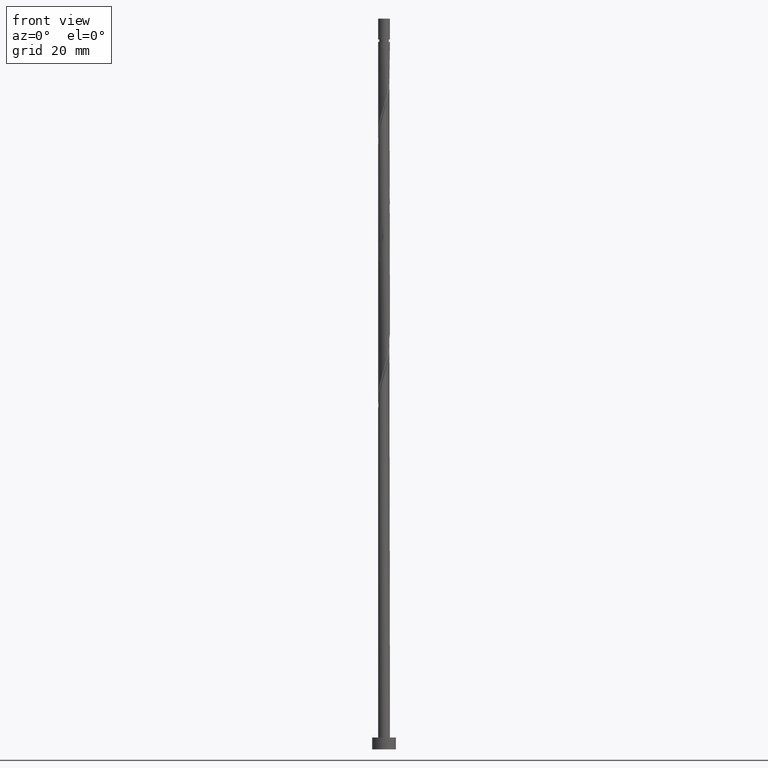
[diagram: clean part render]
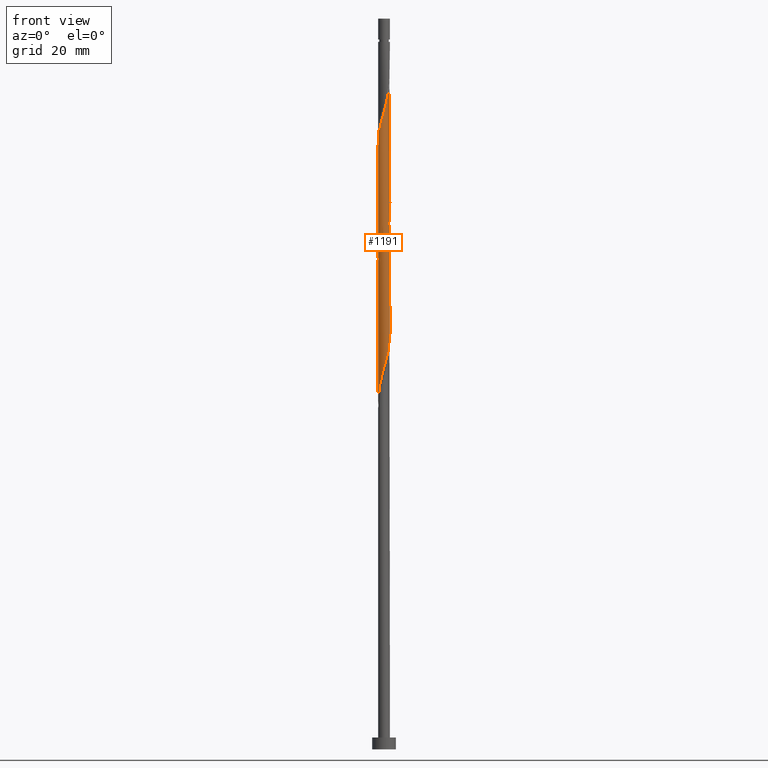
[diagram: same view with one face highlighted and labeled with its STEP entity id]
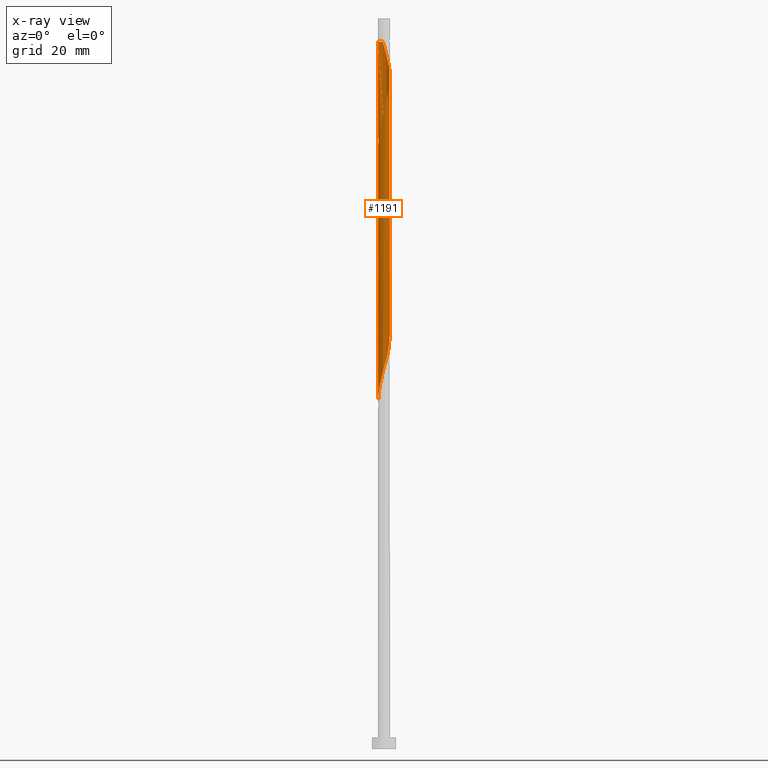
[diagram: x-ray of the same camera — body ghosted, the highlighted face saturated]
A machine part, front view. The second image highlights one B-rep face of the part: STEP entity #1191.
The next image is the same camera in x-ray: the body ghosted, the highlighted face saturated — about 0% of this face is hidden behind the body in this view.
In plain terms, the highlighted cylindrical surface (bore or boss wall) has radius 1.5 mm, axis along (-0, -0, -1).
Its self-contained STEP definition (entity closure, byte-faithful):
#8 = CARTESIAN_POINT ( 'NONE',  ( -1.500000000000000666, -2.033714684332305775E-15, 88.19879343098972413 ) ) ;
#18 = CARTESIAN_POINT ( 'NONE',  ( 0.6687892150010429360, -1.342654455136651048, 163.5241156646684999 ) ) ;
#21 = ORIENTED_EDGE ( 'NONE', *, *, #199, .F. ) ;
#30 = CARTESIAN_POINT ( 'NONE',  ( 1.250515677536281123, -0.8283782591521721139, 166.3018934424463282 ) ) ;
#33 = CARTESIAN_POINT ( 'NONE',  ( -0.09213877760036841280, 1.497167474153212829, 113.5241156646685567 ) ) ;
#37 = CARTESIAN_POINT ( 'NONE',  ( 1.500000000000000222, 1.836970198721030181E-16, 184.6699999999999875 ) ) ;
#50 = CARTESIAN_POINT ( 'NONE',  ( 0.8283782591521695604, -1.250515677536280235, 99.63522677577967102 ) ) ;
#57 = CARTESIAN_POINT ( 'NONE',  ( 1.422305459129118876, 0.4764946809057870603, 106.5796712202240712 ) ) ;
#63 = CARTESIAN_POINT ( 'NONE',  ( 1.141457610771798192, 0.9930117713720155725, 108.6630045535574283 ) ) ;
#82 = EDGE_CURVE ( 'NONE', #1488, #261, #1179, .T. ) ;
#85 = CARTESIAN_POINT ( 'NONE',  ( 1.470000000000000195, -0.2984962311319871442, 137.1352267757797563 ) ) ;
#89 = CARTESIAN_POINT ( 'NONE',  ( -1.500000000000002220, -9.645190966134766424E-16, 152.7383267872363035 ) ) ;
#92 = CARTESIAN_POINT ( 'NONE',  ( -1.470000000000000195, 0.2984962311319869777, 120.4685601091129854 ) ) ;
#98 = CARTESIAN_POINT ( 'NONE',  ( -1.500000000000000444, -4.261828566431670262E-16, 154.8654600976564097 ) ) ;
#112 = CARTESIAN_POINT ( 'NONE',  ( 1.123809227997131233, -0.9935053190942128021, 134.3574489980019280 ) ) ;
#117 = VECTOR ( 'NONE', #1595, 1000.000000000000000 ) ;
#120 = ORIENTED_EDGE ( 'NONE', *, *, #986, .F. ) ;
#126 = CARTESIAN_POINT ( 'NONE',  ( 1.359573744300764053, -0.6637447469323257687, 166.9963378868907853 ) ) ;
#133 = CARTESIAN_POINT ( 'NONE',  ( -1.499999999999990452, 0.000000000000000000, 178.8018934424463282 ) ) ;
#161 = ORIENTED_EDGE ( 'NONE', *, *, #918, .T. ) ;
#163 = CARTESIAN_POINT ( 'NONE',  ( 0.2984962311319872552, 1.470000000000000195, 112.1352267757796426 ) ) ;
#173 = CARTESIAN_POINT ( 'NONE',  ( 1.250515677536280013, 0.8283782591521698935, 107.9685601091129712 ) ) ;
#179 = EDGE_CURVE ( 'NONE', #666, #1297, #1115, .T. ) ;
#188 = CARTESIAN_POINT ( 'NONE',  ( -0.8455530274166267457, -1.254606684622247226, 93.38522677577965680 ) ) ;
#199 = EDGE_CURVE ( 'NONE', #1488, #666, #1103, .T. ) ;
#202 = DIRECTION ( 'NONE',  ( -1.000000000000000000, 0.000000000000000000, 0.000000000000000000 ) ) ;
#210 =( BOUNDED_CURVE ( )  B_SPLINE_CURVE ( 2, ( #1617, #866, #85, #999, #602, #238, #112, #465, #748, #968, #1122, #1466, #367, #338, #1343, #857, #1131, #1623, #641, #878, #216, #1367, #730, #757, #1253, #1226, #92, #960, #1456, #612, #1601, #480, #979, #1477, #1382, #1396, #33, #1411, #163, #762, #1009, #647, #516, #63, #173, #439, #57, #950, #1327, #683, #690, #571, #448, #1445, #578, #1186, #50, #1064, #1562, #434, #935, #1430, #314, #819, #1320, #188, #718, #599, #1597, #1095, #476, #976, #1454, #835, #1473 ),
 .UNSPECIFIED., .F., .T. ) 
 B_SPLINE_CURVE_WITH_KNOTS ( ( 3, 2, 2, 2, 2, 2, 2, 2, 2, 2, 2, 2, 2, 2, 2, 2, 2, 2, 2, 2, 2, 2, 2, 2, 2, 2, 2, 2, 2, 2, 2, 2, 2, 2, 2, 2, 2, 3 ),
 ( 0.5545317669814462391, 0.5625000000000000000, 0.5729166666666666297, 0.5833333333333333703, 0.5937500000000000000, 0.6041666666666666297, 0.6145833333333333703, 0.6250000000000000000, 0.6354166666666666297, 0.6458333333333333703, 0.6562500000000000000, 0.6666666666666666297, 0.6770833333333333703, 0.6875000000000000000, 0.6979166666666666297, 0.7083333333333333703, 0.7187500000000000000, 0.7291666666666666297, 0.7395833333333333703, 0.7500000000000000000, 0.7604166666666666297, 0.7708333333333333703, 0.7812500000000000000, 0.7916666666666666297, 0.8020833333333333703, 0.8125000000000000000, 0.8229166666666666297, 0.8333333333333333703, 0.8437500000000000000, 0.8541666666666666297, 0.8645833333333333703, 0.8750000000000000000, 0.8854166666666666297, 0.8958333333333332593, 0.9062500000000000000, 0.9166666666666667407, 0.9270833333333332593, 0.9295317669814462391 ),
 .UNSPECIFIED. ) 
 CURVE ( )  GEOMETRIC_REPRESENTATION_ITEM ( )  RATIONAL_B_SPLINE_CURVE ( ( 0.9062941362546560464, 0.9031415850403601286, 0.9090909090909357060, 0.9013135103398539627, 0.9090909090909357060, 0.9013135103398539627, 0.9090909090909357060, 0.9013135103398539627, 0.9090909090909357060, 0.9013135103398539627, 0.9090909090909357060, 0.9013135103398539627, 0.9090909090909357060, 0.9013135103398539627, 0.9090909090909357060, 0.9013135103398539627, 0.9090909090909357060, 0.9013135103398539627, 0.9090909090909357060, 0.9013135103398539627, 0.9090909090909357060, 0.9013135103398539627, 0.9090909090909357060, 0.9013135103398539627, 0.9090909090909357060, 0.9013135103398539627, 0.9090909090909357060, 0.9013135103398539627, 0.9090909090909357060, 0.9013135103398539627, 0.9090909090909357060, 0.9013135103398539627, 0.9090909090909357060, 0.9013135103398539627, 0.9090909090909357060, 0.9013135103398539627, 0.9090909090909357060, 0.9013135103398539627, 0.9090909090909357060, 0.9013135103398539627, 0.9090909090909357060, 0.9013135103398539627, 0.9090909090909357060, 0.9013135103398539627, 0.9090909090909357060, 0.9013135103398539627, 0.9090909090909357060, 0.9013135103398539627, 0.9090909090909357060, 0.9013135103398539627, 0.9090909090909357060, 0.9013135103398539627, 0.9090909090909357060, 0.9013135103398539627, 0.9090909090909357060, 0.9013135103398539627, 0.9090909090909357060, 0.9013135103398539627, 0.9090909090909357060, 0.9013135103398539627, 0.9090909090909357060, 0.9013135103398539627, 0.9090909090909357060, 0.9013135103398539627, 0.9090909090909357060, 0.9013135103398539627, 0.9090909090909357060, 0.9013135103398539627, 0.9090909090909357060, 0.9013135103398539627, 0.9090909090909357060, 0.9013135103398539627, 0.9090909090909357060, 0.9072628343904295400, 0.9062941362546560464 ) ) 
 REPRESENTATION_ITEM ( '' )  );
#211 = CARTESIAN_POINT ( 'NONE',  ( -1.430702225651049320, 0.4920254025854589042, 153.1074489980018711 ) ) ;
#216 = CARTESIAN_POINT ( 'NONE',  ( -1.250515677536280013, -0.8283782591521701155, 124.6352267757796568 ) ) ;
#226 = VERTEX_POINT ( 'NONE', #1481 ) ;
#232 = CARTESIAN_POINT ( 'NONE',  ( -1.500000000000000888, 0.1507556722888802048, 154.3320337284671950 ) ) ;
#238 = CARTESIAN_POINT ( 'NONE',  ( 1.254606684622246782, -0.8455530274166275229, 135.0518934424462998 ) ) ;
#244 = CARTESIAN_POINT ( 'NONE',  ( 1.359573744300762277, 0.6637447469323227711, 140.6074489980018427 ) ) ;
#261 = VERTEX_POINT ( 'NONE', #1372 ) ;
#265 = LINE ( 'NONE', #37, #1361 ) ;
#268 = CARTESIAN_POINT ( 'NONE',  ( 1.141457610771798858, -0.9930117713720179040, 165.6074489980018711 ) ) ;
#270 = EDGE_LOOP ( 'NONE', ( #21, #915, #1418, #161, #388, #120, #1296, #729 ) ) ;
#273 = CARTESIAN_POINT ( 'NONE',  ( 0.000000000000000000, 0.000000000000000000, 184.6699999999999875 ) ) ;
#286 = CARTESIAN_POINT ( 'NONE',  ( 1.430702225651052428, 0.4920254025854587931, 171.1630045535574141 ) ) ;
#314 = CARTESIAN_POINT ( 'NONE',  ( -0.2984962311319870887, -1.470000000000000195, 95.46856010911298540 ) ) ;
#331 = CARTESIAN_POINT ( 'NONE',  ( 0.6687892150010440462, 1.342654455136647940, 144.0796712202240997 ) ) ;
#338 = CARTESIAN_POINT ( 'NONE',  ( -0.1049670596785154120, -1.509297774348951293, 129.4963378868907569 ) ) ;
#340 = CARTESIAN_POINT ( 'NONE',  ( 1.500000000000000222, 1.836970198721030181E-16, 178.8018934424463282 ) ) ;
#352 = CARTESIAN_POINT ( 'NONE',  ( -0.9930117713720179040, -1.141457610771798858, 157.2741156646684999 ) ) ;
#354 = CARTESIAN_POINT ( 'NONE',  ( 0.4920254025854601254, 1.430702225651048876, 144.7741156646684999 ) ) ;
#360 = CARTESIAN_POINT ( 'NONE',  ( -0.6637447469323257687, -1.359573744300764275, 158.6630045535574425 ) ) ;
#363 = CARTESIAN_POINT ( 'NONE',  ( 0.2984962311319872552, 1.470000000000000195, 145.4685601091130138 ) ) ;
#367 = CARTESIAN_POINT ( 'NONE',  ( 0.09213877760036778830, -1.497167474153212829, 130.1907823313352424 ) ) ;
#388 = ORIENTED_EDGE ( 'NONE', *, *, #876, .F. ) ;
#404 = CARTESIAN_POINT ( 'NONE',  ( 1.470000000000002416, 0.2984962311319868111, 170.4685601091129854 ) ) ;
#434 = CARTESIAN_POINT ( 'NONE',  ( 0.2892446148792508498, -1.485037173957475032, 97.55189344244634242 ) ) ;
#439 = CARTESIAN_POINT ( 'NONE',  ( 1.359573744300762277, 0.6637447469323227711, 107.2741156646685567 ) ) ;
#448 = CARTESIAN_POINT ( 'NONE',  ( 1.342654455136647940, -0.6687892150010439352, 102.4130045535574283 ) ) ;
#465 = CARTESIAN_POINT ( 'NONE',  ( 0.9930117713720155725, -1.141457610771798192, 133.6630045535574141 ) ) ;
#471 = CARTESIAN_POINT ( 'NONE',  ( -1.430702225651052428, -0.4920254025854589042, 154.4963378868907569 ) ) ;
#476 = CARTESIAN_POINT ( 'NONE',  ( -1.422305459129118654, -0.4764946809057876154, 89.91300455355742827 ) ) ;
#480 = CARTESIAN_POINT ( 'NONE',  ( -0.9930117713720162387, 1.141457610771797970, 116.9963378868907569 ) ) ;
#483 = CARTESIAN_POINT ( 'NONE',  ( -1.342654455136650826, -0.6687892150010431580, 155.1907823313351855 ) ) ;
#487 = CARTESIAN_POINT ( 'NONE',  ( 1.141457610771798192, 0.9930117713720155725, 141.9963378868908137 ) ) ;
#488 = CARTESIAN_POINT ( 'NONE',  ( -0.09213877760036917608, -1.497167474153214384, 160.7463378868908137 ) ) ;
#504 = CARTESIAN_POINT ( 'NONE',  ( -0.2892446148792517935, 1.485037173957475032, 147.5518934424463566 ) ) ;
#512 = CARTESIAN_POINT ( 'NONE',  ( 1.342654455136651048, 0.6687892150010429360, 171.8574489980018427 ) ) ;
#516 = CARTESIAN_POINT ( 'NONE',  ( 0.9935053190942128021, 1.123809227997131233, 109.3574489980018996 ) ) ;
#532 = CARTESIAN_POINT ( 'NONE',  ( 0.6637447469323259908, 1.359573744300764053, 175.3296712202240997 ) ) ;
#542 = CARTESIAN_POINT ( 'NONE',  ( 1.497167474153214384, -0.09213877760036998099, 169.0796712202240997 ) ) ;
#550 = LINE ( 'NONE', #1046, #1004 ) ;
#571 = CARTESIAN_POINT ( 'NONE',  ( 1.430702225651048876, -0.4920254025854600699, 103.1074489980018996 ) ) ;
#578 = CARTESIAN_POINT ( 'NONE',  ( 1.123809227997131233, -0.9935053190942128021, 101.0241156646685425 ) ) ;
#599 = CARTESIAN_POINT ( 'NONE',  ( -1.141457610771798192, -0.9930117713720160166, 91.99633788689077107 ) ) ;
#602 = CARTESIAN_POINT ( 'NONE',  ( 1.342654455136647940, -0.6687892150010439352, 135.7463378868908137 ) ) ;
#604 = CARTESIAN_POINT ( 'NONE',  ( -1.500000000000000444, -4.261828566431670262E-16, 154.8654600976564097 ) ) ;
#608 = CARTESIAN_POINT ( 'NONE',  ( 1.500000000000000444, 1.652393181019998565E-15, 138.1987934309897526 ) ) ;
#612 = CARTESIAN_POINT ( 'NONE',  ( -1.254606684622247226, 0.8455530274166267457, 118.3852267757796426 ) ) ;
#617 = CARTESIAN_POINT ( 'NONE',  ( -0.09213877760036841280, 1.497167474153212829, 146.8574489980018996 ) ) ;
#624 = CARTESIAN_POINT ( 'NONE',  ( 0.2984962311319869221, -1.470000000000002416, 162.1352267757796426 ) ) ;
#633 = VERTEX_POINT ( 'NONE', #340 ) ;
#641 = CARTESIAN_POINT ( 'NONE',  ( -0.9935053190942128021, -1.123809227997131455, 126.0241156646685567 ) ) ;
#645 = CARTESIAN_POINT ( 'NONE',  ( 1.254606684622249890, 0.8455530274166268567, 172.5518934424462998 ) ) ;
#647 = CARTESIAN_POINT ( 'NONE',  ( 0.8455530274166275229, 1.254606684622246560, 110.0518934424463140 ) ) ;
#656 = CARTESIAN_POINT ( 'NONE',  ( 0.8455530274166268567, -1.254606684622249890, 164.2185601091129570 ) ) ;
#666 = VERTEX_POINT ( 'NONE', #604 ) ;
#683 = CARTESIAN_POINT ( 'NONE',  ( 1.509297774348951293, -0.1049670596785154952, 104.4963378868907711 ) ) ;
#690 = CARTESIAN_POINT ( 'NONE',  ( 1.470000000000000195, -0.2984962311319871442, 103.8018934424463282 ) ) ;
#713 = CARTESIAN_POINT ( 'NONE',  ( -0.2892446148792525706, -1.485037173957477030, 160.0518934424463282 ) ) ;
#718 = CARTESIAN_POINT ( 'NONE',  ( -0.9935053190942128021, -1.123809227997131455, 92.69078233133521394 ) ) ;
#725 = CARTESIAN_POINT ( 'NONE',  ( -0.6637447469323241034, 1.359573744300762055, 148.9407823313352708 ) ) ;
#729 = ORIENTED_EDGE ( 'NONE', *, *, #179, .F. ) ;
#730 = CARTESIAN_POINT ( 'NONE',  ( -1.422305459129118654, -0.4764946809057876154, 123.2463378868907853 ) ) ;
#735 = CARTESIAN_POINT ( 'NONE',  ( 0.1049670596785142740, -1.509297774348953070, 161.4407823313351855 ) ) ;
#743 = CARTESIAN_POINT ( 'NONE',  ( -1.123809227997131455, 0.9935053190942124690, 151.0241156646685852 ) ) ;
#748 = CARTESIAN_POINT ( 'NONE',  ( 0.8283782591521695604, -1.250515677536280235, 132.9685601091130138 ) ) ;
#753 = CARTESIAN_POINT ( 'NONE',  ( 0.1049670596785149818, 1.509297774348950627, 146.1630045535574425 ) ) ;
#757 = CARTESIAN_POINT ( 'NONE',  ( -1.485037173957475032, -0.2892446148792514049, 122.5518934424463282 ) ) ;
#759 = CARTESIAN_POINT ( 'NONE',  ( -0.9930117713720162387, 1.141457610771797970, 150.3296712202240997 ) ) ;
#760 = CARTESIAN_POINT ( 'NONE',  ( 0.9930117713720185701, 1.141457610771798192, 173.9407823313351855 ) ) ;
#762 = CARTESIAN_POINT ( 'NONE',  ( 0.4920254025854601254, 1.430702225651048876, 111.4407823313351997 ) ) ;
#781 = DIRECTION ( 'NONE',  ( -0.000000000000000000, -0.000000000000000000, -1.000000000000000000 ) ) ;
#783 = CARTESIAN_POINT ( 'NONE',  ( 1.123809227997134341, 0.9935053190942124690, 173.2463378868906716 ) ) ;
#793 = CARTESIAN_POINT ( 'NONE',  ( -0.1049670596785112348, 1.509297774348953070, 178.1074489980018996 ) ) ;
#808 = CARTESIAN_POINT ( 'NONE',  ( 0.000000000000000000, 0.000000000000000000, 178.8018934424463282 ) ) ;
#819 = CARTESIAN_POINT ( 'NONE',  ( -0.4920254025854592927, -1.430702225651049320, 94.77411566466852832 ) ) ;
#834 =( BOUNDED_CURVE ( )  B_SPLINE_CURVE ( 2, ( #89, #990, #1109, #471, #483, #984, #1479, #352, #1484, #360, #881, #713, #488, #735, #624, #1158, #18, #656, #1041, #268, #30, #126, #1165, #1285, #542, #1535, #404, #286, #512, #645, #783, #760, #1630, #532, #1014, #1030, #1023, #793, #914 ),
 .UNSPECIFIED., .F., .T. ) 
 B_SPLINE_CURVE_WITH_KNOTS ( ( 3, 2, 2, 2, 2, 2, 2, 2, 2, 2, 2, 2, 2, 2, 2, 2, 2, 2, 2, 3 ),
 ( 0.5545317669814464612, 0.5625000000000000000, 0.5729166666666667407, 0.5833333333333332593, 0.5937500000000000000, 0.6041666666666667407, 0.6145833333333332593, 0.6250000000000000000, 0.6354166666666667407, 0.6458333333333332593, 0.6562500000000000000, 0.6666666666666666297, 0.6770833333333331483, 0.6874999999999998890, 0.6979166666666666297, 0.7083333333333331483, 0.7187499999999998890, 0.7291666666666666297, 0.7395833333333331483, 0.7499999999999998890 ),
 .UNSPECIFIED. ) 
 CURVE ( )  GEOMETRIC_REPRESENTATION_ITEM ( )  RATIONAL_B_SPLINE_CURVE ( ( 0.9062941362546617086, 0.9031415850403662349, 0.9090909090909415902, 0.9013135103398597359, 0.9090909090909415902, 0.9013135103398597359, 0.9090909090909415902, 0.9013135103398597359, 0.9090909090909415902, 0.9013135103398597359, 0.9090909090909415902, 0.9013135103398597359, 0.9090909090909415902, 0.9013135103398597359, 0.9090909090909415902, 0.9013135103398597359, 0.9090909090909415902, 0.9013135103398597359, 0.9090909090909415902, 0.9013135103398597359, 0.9090909090909415902, 0.9013135103398597359, 0.9090909090909415902, 0.9013135103398597359, 0.9090909090909415902, 0.9013135103398597359, 0.9090909090909415902, 0.9013135103398597359, 0.9090909090909415902, 0.9013135103398597359, 0.9090909090909415902, 0.9013135103398597359, 0.9090909090909415902, 0.9013135103398597359, 0.9090909090909415902, 0.9013135103398597359, 0.9090909090909415902, 0.9013135103398597359, 0.9090909090909415902 ) ) 
 REPRESENTATION_ITEM ( '' )  );
#835 = CARTESIAN_POINT ( 'NONE',  ( -1.500000000000000444, -0.04611292748651065615, 88.36195711901787320 ) ) ;
#857 = CARTESIAN_POINT ( 'NONE',  ( -0.4920254025854592927, -1.430702225651049320, 128.1074489980018711 ) ) ;
#862 = CARTESIAN_POINT ( 'NONE',  ( -1.254606684622247226, 0.8455530274166267457, 151.7185601091129570 ) ) ;
#866 = CARTESIAN_POINT ( 'NONE',  ( 1.500000000000000888, -0.1507556722888816203, 137.6653670618005094 ) ) ;
#872 = CARTESIAN_POINT ( 'NONE',  ( 1.422305459129118876, 0.4764946809057870603, 139.9130045535574141 ) ) ;
#876 = EDGE_CURVE ( 'NONE', #1297, #1410, #210, .T. ) ;
#878 = CARTESIAN_POINT ( 'NONE',  ( -1.141457610771798192, -0.9930117713720160166, 125.3296712202240997 ) ) ;
#881 = CARTESIAN_POINT ( 'NONE',  ( -0.4764946809057893917, -1.422305459129119987, 159.3574489980018711 ) ) ;
#914 = CARTESIAN_POINT ( 'NONE',  ( -0.2984962311320307204, 1.470000000000440954, 178.8018934424463282 ) ) ;
#915 = ORIENTED_EDGE ( 'NONE', *, *, #82, .T. ) ;
#918 = EDGE_CURVE ( 'NONE', #226, #1410, #550, .T. ) ;
#935 = CARTESIAN_POINT ( 'NONE',  ( 0.09213877760036778830, -1.497167474153212829, 96.85744899800184271 ) ) ;
#950 = CARTESIAN_POINT ( 'NONE',  ( 1.485037173957475032, 0.2892446148792508498, 105.8852267757796284 ) ) ;
#957 = AXIS2_PLACEMENT_3D ( 'NONE', #808, #1575, #202 ) ;
#960 = CARTESIAN_POINT ( 'NONE',  ( -1.430702225651049320, 0.4920254025854589042, 119.7741156646685283 ) ) ;
#968 = CARTESIAN_POINT ( 'NONE',  ( 0.6637447469323237703, -1.359573744300762277, 132.2741156646685567 ) ) ;
#976 = CARTESIAN_POINT ( 'NONE',  ( -1.485037173957475032, -0.2892446148792514049, 89.21856010911299961 ) ) ;
#979 = CARTESIAN_POINT ( 'NONE',  ( -0.8283782591521701155, 1.250515677536280013, 116.3018934424463282 ) ) ;
#984 = CARTESIAN_POINT ( 'NONE',  ( -1.254606684622249890, -0.8455530274166273008, 155.8852267757796142 ) ) ;
#986 = EDGE_CURVE ( 'NONE', #633, #1297, #265, .T. ) ;
#990 = CARTESIAN_POINT ( 'NONE',  ( -1.500000000000001776, -0.1507556722888867273, 153.2717531564255751 ) ) ;
#999 = CARTESIAN_POINT ( 'NONE',  ( 1.430702225651048876, -0.4920254025854600699, 136.4407823313352139 ) ) ;
#1004 = VECTOR ( 'NONE', #1171, 1000.000000000000000 ) ;
#1009 = CARTESIAN_POINT ( 'NONE',  ( 0.6687892150010440462, 1.342654455136647940, 110.7463378868907711 ) ) ;
#1014 = CARTESIAN_POINT ( 'NONE',  ( 0.4764946809057895583, 1.422305459129119987, 176.0241156646685567 ) ) ;
#1019 = DIRECTION ( 'NONE',  ( -0.000000000000000000, -0.000000000000000000, -1.000000000000000000 ) ) ;
#1023 = CARTESIAN_POINT ( 'NONE',  ( 0.09213877760037003650, 1.497167474153214384, 177.4130045535573856 ) ) ;
#1030 = CARTESIAN_POINT ( 'NONE',  ( 0.2892446148792533478, 1.485037173957476808, 176.7185601091129854 ) ) ;
#1041 = CARTESIAN_POINT ( 'NONE',  ( 0.9935053190942132462, -1.123809227997133231, 164.9130045535574425 ) ) ;
#1046 = CARTESIAN_POINT ( 'NONE',  ( -1.500000000000000222, 0.000000000000000000, 184.6699999999999875 ) ) ;
#1064 = CARTESIAN_POINT ( 'NONE',  ( 0.6637447469323237703, -1.359573744300762277, 98.94078233133521394 ) ) ;
#1093 = CARTESIAN_POINT ( 'NONE',  ( 1.250515677536280013, 0.8283782591521698935, 141.3018934424463282 ) ) ;
#1095 = CARTESIAN_POINT ( 'NONE',  ( -1.359573744300762277, -0.6637447469323237703, 90.60744899800188534 ) ) ;
#1103 = LINE ( 'NONE', #1249, #117 ) ;
#1109 = CARTESIAN_POINT ( 'NONE',  ( -1.470000000000002416, -0.2984962311319870332, 153.8018934424463282 ) ) ;
#1111 = CARTESIAN_POINT ( 'NONE',  ( -0.8283782591521701155, 1.250515677536280013, 149.6352267757796710 ) ) ;
#1115 =( BOUNDED_CURVE ( )  B_SPLINE_CURVE ( 2, ( #98, #232, #1119, #211, #1232, #862, #743, #759, #1111, #725, #1241, #504, #617, #753, #363, #354, #331, #1606, #1223, #487, #1093, #244, #872, #1364, #1588, #1614, #608 ),
 .UNSPECIFIED., .F., .T. ) 
 B_SPLINE_CURVE_WITH_KNOTS ( ( 3, 2, 2, 2, 2, 2, 2, 2, 2, 2, 2, 2, 2, 3 ),
 ( 0.4295317669814461281, 0.4375000000000000000, 0.4479166666666666852, 0.4583333333333333148, 0.4687500000000000000, 0.4791666666666666852, 0.4895833333333333148, 0.5000000000000000000, 0.5104166666666666297, 0.5208333333333333703, 0.5312500000000000000, 0.5416666666666666297, 0.5520833333333333703, 0.5545317669814462391 ),
 .UNSPECIFIED. ) 
 CURVE ( )  GEOMETRIC_REPRESENTATION_ITEM ( )  RATIONAL_B_SPLINE_CURVE ( ( 0.9062941362546561574, 0.9031415850403601286, 0.9090909090909357060, 0.9013135103398539627, 0.9090909090909357060, 0.9013135103398539627, 0.9090909090909357060, 0.9013135103398539627, 0.9090909090909357060, 0.9013135103398539627, 0.9090909090909357060, 0.9013135103398539627, 0.9090909090909357060, 0.9013135103398539627, 0.9090909090909357060, 0.9013135103398539627, 0.9090909090909357060, 0.9013135103398539627, 0.9090909090909357060, 0.9013135103398539627, 0.9090909090909357060, 0.9013135103398539627, 0.9090909090909357060, 0.9013135103398539627, 0.9090909090909357060, 0.9072628343904295400, 0.9062941362546560464 ) ) 
 REPRESENTATION_ITEM ( '' )  );
#1119 = CARTESIAN_POINT ( 'NONE',  ( -1.470000000000000195, 0.2984962311319869777, 153.8018934424463566 ) ) ;
#1122 = CARTESIAN_POINT ( 'NONE',  ( 0.4764946809057875599, -1.422305459129118654, 131.5796712202240997 ) ) ;
#1131 = CARTESIAN_POINT ( 'NONE',  ( -0.6687892150010430470, -1.342654455136648162, 127.4130045535574567 ) ) ;
#1158 = CARTESIAN_POINT ( 'NONE',  ( 0.4920254025854589042, -1.430702225651052428, 162.8296712202240997 ) ) ;
#1165 = CARTESIAN_POINT ( 'NONE',  ( 1.422305459129120209, -0.4764946809057895583, 167.6907823313352139 ) ) ;
#1171 = DIRECTION ( 'NONE',  ( -0.000000000000000000, -0.000000000000000000, -1.000000000000000000 ) ) ;
#1179 = CIRCLE ( 'NONE', #957, 1.499999999999990452 ) ;
#1186 = CARTESIAN_POINT ( 'NONE',  ( 0.9930117713720155725, -1.141457610771798192, 100.3296712202240997 ) ) ;
#1191 = ADVANCED_FACE ( 'NONE', ( #1385 ), #1398, .T. ) ;
#1214 = AXIS2_PLACEMENT_3D ( 'NONE', #273, #781, #1273 ) ;
#1223 = CARTESIAN_POINT ( 'NONE',  ( 0.9935053190942128021, 1.123809227997131233, 142.6907823313351855 ) ) ;
#1226 = CARTESIAN_POINT ( 'NONE',  ( -1.509297774348951293, 0.1049670596785153426, 121.1630045535574567 ) ) ;
#1232 = CARTESIAN_POINT ( 'NONE',  ( -1.342654455136648162, 0.6687892150010430470, 152.4130045535574993 ) ) ;
#1241 = CARTESIAN_POINT ( 'NONE',  ( -0.4764946809057878929, 1.422305459129118654, 148.2463378868907853 ) ) ;
#1249 = CARTESIAN_POINT ( 'NONE',  ( -1.500000000000000222, 0.000000000000000000, 184.6699999999999875 ) ) ;
#1253 = CARTESIAN_POINT ( 'NONE',  ( -1.497167474153212829, -0.09213877760036827402, 121.8574489980019138 ) ) ;
#1273 = DIRECTION ( 'NONE',  ( -1.000000000000000000, 0.000000000000000000, 0.000000000000000000 ) ) ;
#1285 = CARTESIAN_POINT ( 'NONE',  ( 1.485037173957476808, -0.2892446148792533478, 168.3852267757796994 ) ) ;
#1296 = ORIENTED_EDGE ( 'NONE', *, *, #986, .T. ) ;
#1297 = VERTEX_POINT ( 'NONE', #1629 ) ;
#1320 = CARTESIAN_POINT ( 'NONE',  ( -0.6687892150010430470, -1.342654455136648162, 94.07967122022411388 ) ) ;
#1327 = CARTESIAN_POINT ( 'NONE',  ( 1.497167474153212829, 0.09213877760036773279, 105.1907823313352282 ) ) ;
#1343 = CARTESIAN_POINT ( 'NONE',  ( -0.2984962311319870887, -1.470000000000000195, 128.8018934424462998 ) ) ;
#1361 = VECTOR ( 'NONE', #1019, 1000.000000000000000 ) ;
#1364 = CARTESIAN_POINT ( 'NONE',  ( 1.485037173957475032, 0.2892446148792508498, 139.2185601091130138 ) ) ;
#1367 = CARTESIAN_POINT ( 'NONE',  ( -1.359573744300762277, -0.6637447469323237703, 123.9407823313351997 ) ) ;
#1372 = CARTESIAN_POINT ( 'NONE',  ( -0.2984962311320307760, 1.470000000000440954, 178.8018934424463282 ) ) ;
#1382 = CARTESIAN_POINT ( 'NONE',  ( -0.4764946809057878929, 1.422305459129118654, 114.9130045535574283 ) ) ;
#1385 = FACE_OUTER_BOUND ( 'NONE', #270, .T. ) ;
#1392 = EDGE_CURVE ( 'NONE', #226, #261, #834, .T. ) ;
#1396 = CARTESIAN_POINT ( 'NONE',  ( -0.2892446148792517935, 1.485037173957475032, 114.2185601091129428 ) ) ;
#1398 = CYLINDRICAL_SURFACE ( 'NONE', #1214, 1.500000000000000222 ) ;
#1410 = VERTEX_POINT ( 'NONE', #8 ) ;
#1411 = CARTESIAN_POINT ( 'NONE',  ( 0.1049670596785149818, 1.509297774348950627, 112.8296712202241281 ) ) ;
#1418 = ORIENTED_EDGE ( 'NONE', *, *, #1392, .F. ) ;
#1430 = CARTESIAN_POINT ( 'NONE',  ( -0.1049670596785154120, -1.509297774348951293, 96.16300455355742827 ) ) ;
#1445 = CARTESIAN_POINT ( 'NONE',  ( 1.254606684622246782, -0.8455530274166275229, 101.7185601091129996 ) ) ;
#1454 = CARTESIAN_POINT ( 'NONE',  ( -1.497167474153212829, -0.09213877760036827402, 88.52411566466855675 ) ) ;
#1456 = CARTESIAN_POINT ( 'NONE',  ( -1.342654455136648162, 0.6687892150010430470, 119.0796712202240855 ) ) ;
#1466 = CARTESIAN_POINT ( 'NONE',  ( 0.2892446148792508498, -1.485037173957475032, 130.8852267757796426 ) ) ;
#1473 = CARTESIAN_POINT ( 'NONE',  ( -1.500000000000000444, -2.033714684332305775E-15, 88.19879343098972413 ) ) ;
#1477 = CARTESIAN_POINT ( 'NONE',  ( -0.6637447469323241034, 1.359573744300762055, 115.6074489980018853 ) ) ;
#1479 = CARTESIAN_POINT ( 'NONE',  ( -1.123809227997133231, -0.9935053190942132462, 156.5796712202240997 ) ) ;
#1481 = CARTESIAN_POINT ( 'NONE',  ( -1.500000000000002220, -9.645190966134768396E-16, 152.7383267872363035 ) ) ;
#1484 = CARTESIAN_POINT ( 'NONE',  ( -0.8283782591521714478, -1.250515677536281345, 157.9685601091129854 ) ) ;
#1488 = VERTEX_POINT ( 'NONE', #133 ) ;
#1535 = CARTESIAN_POINT ( 'NONE',  ( 1.509297774348953070, 0.1049670596785135107, 169.7741156646685567 ) ) ;
#1562 = CARTESIAN_POINT ( 'NONE',  ( 0.4764946809057875599, -1.422305459129118654, 98.24633788689075686 ) ) ;
#1575 = DIRECTION ( 'NONE',  ( -0.000000000000000000, -0.000000000000000000, -1.000000000000000000 ) ) ;
#1588 = CARTESIAN_POINT ( 'NONE',  ( 1.497167474153212829, 0.09213877760036773279, 138.5241156646685567 ) ) ;
#1595 = DIRECTION ( 'NONE',  ( -0.000000000000000000, -0.000000000000000000, -1.000000000000000000 ) ) ;
#1597 = CARTESIAN_POINT ( 'NONE',  ( -1.250515677536280013, -0.8283782591521701155, 91.30189344244631400 ) ) ;
#1601 = CARTESIAN_POINT ( 'NONE',  ( -1.123809227997131455, 0.9935053190942124690, 117.6907823313351997 ) ) ;
#1606 = CARTESIAN_POINT ( 'NONE',  ( 0.8455530274166275229, 1.254606684622246560, 143.3852267757796710 ) ) ;
#1614 = CARTESIAN_POINT ( 'NONE',  ( 1.500000000000000444, 0.04611292748651021206, 138.3619571190178874 ) ) ;
#1617 = CARTESIAN_POINT ( 'NONE',  ( 1.500000000000000444, 1.652393181019998565E-15, 138.1987934309897526 ) ) ;
#1623 = CARTESIAN_POINT ( 'NONE',  ( -0.8455530274166267457, -1.254606684622247226, 126.7185601091129712 ) ) ;
#1629 = CARTESIAN_POINT ( 'NONE',  ( 1.500000000000000666, 1.652393181019998565E-15, 138.1987934309897526 ) ) ;
#1630 = CARTESIAN_POINT ( 'NONE',  ( 0.8283782591521714478, 1.250515677536281345, 174.6352267757796142 ) ) ;